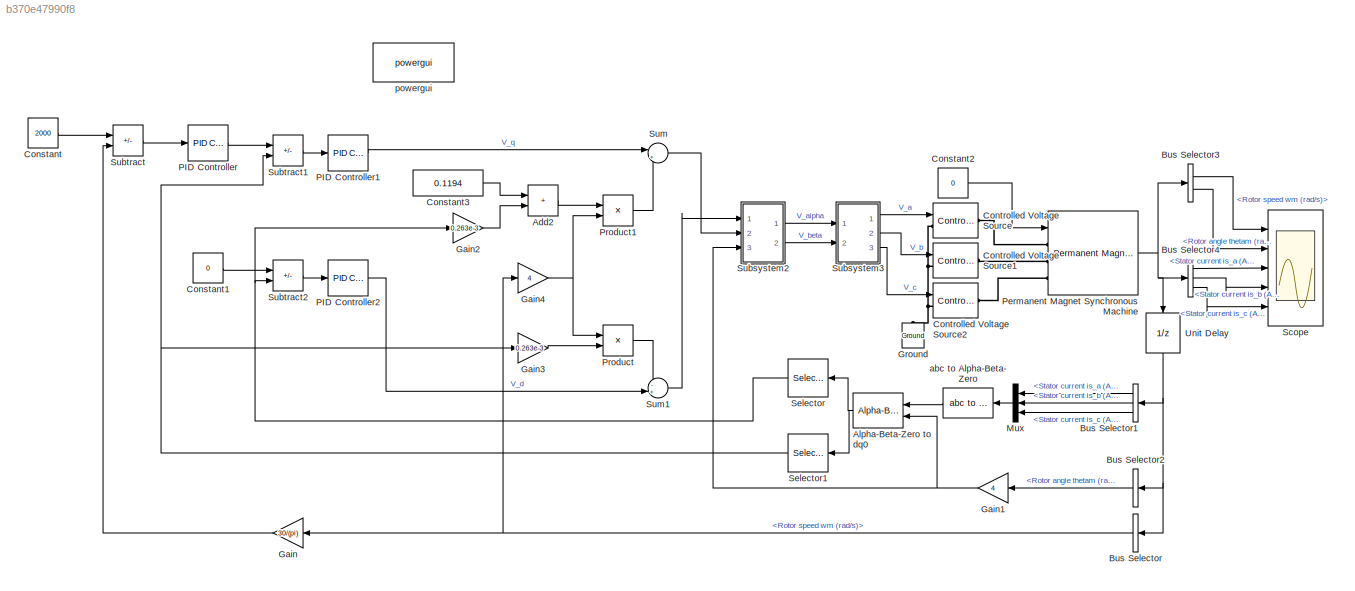
MODEL slx_b370e47990f8
KIND model
CONFIG AbsTol = auto
CONFIG EnableMultiTasking = off
CONFIG FixedStep = auto
CONFIG MaxStep = auto
CONFIG MinStep = auto
CONFIG RelTol = 1e-3
CONFIG SampleTimeConstraint = Unconstrained
CONFIG Solver = VariableStepAuto
CONFIG SolverName = VariableStepAuto
CONFIG StartTime = 0.0
CONFIG StopTime = 3
BLOCK [Sum] Add2
  IconShape = rectangular
  Ports = [2, 1]
BLOCK [Reference] Alpha-Beta-Zero to dq0  REF=powerlib_meascontrol/Transformations/Alpha-Beta-Zero
to dq0
  Ports = [2, 1]
  SourceBlock = powerlib_meascontrol/Transformations/Alpha-Beta-Zero\nto dq0
  SourceProductBaseCode = PS
  SourceType = Alpha-Beta-Zero to dq0 Transformation
BLOCK [BusSelector] Bus Selector
  OutputSignals = Rotor speed wm (rad/s)
  Ports = [1, 1]
BLOCK [BusSelector] Bus Selector1
  OutputSignals = Stator current is_a (A),Stator current is_b (A),Stator current is_c (A)
  Ports = [1, 3]
BLOCK [BusSelector] Bus Selector2
  OutputSignals = Rotor angle thetam (rad)
  Ports = [1, 1]
BLOCK [BusSelector] Bus Selector3
  OutputSignals = Rotor speed wm (rad/s),Rotor angle thetam (rad)
  Ports = [1, 2]
BLOCK [BusSelector] Bus Selector4
  OutputSignals = Stator current is_a (A),Stator current is_b (A),Stator current is_c (A)
  Ports = [1, 3]
BLOCK [Constant] Constant
  Value = 2000
BLOCK [Constant] Constant1
  Value = 0
BLOCK [Constant] Constant2
  Value = 0
BLOCK [Constant] Constant3
  Value = 0.1194
BLOCK [Reference] Controlled Voltage Source  REF=powerlib/Electrical
Sources/Controlled Voltage Source
  Ports = [1, 0, 0, 0, 0, 1, 1]
  SourceBlock = powerlib/Electrical\nSources/Controlled Voltage Source
  SourceProductBaseCode = PS
  SourceType = Controlled Voltage Source
BLOCK [Reference] Controlled Voltage Source1  REF=powerlib/Electrical
Sources/Controlled Voltage Source
  Ports = [1, 0, 0, 0, 0, 1, 1]
  SourceBlock = powerlib/Electrical\nSources/Controlled Voltage Source
  SourceProductBaseCode = PS
  SourceType = Controlled Voltage Source
BLOCK [Reference] Controlled Voltage Source2  REF=powerlib/Electrical
Sources/Controlled Voltage Source
  Ports = [1, 0, 0, 0, 0, 1, 1]
  SourceBlock = powerlib/Electrical\nSources/Controlled Voltage Source
  SourceProductBaseCode = PS
  SourceType = Controlled Voltage Source
BLOCK [Gain] Gain
  Gain = 30/(pi)
BLOCK [Gain] Gain1
  Gain = 4
BLOCK [Gain] Gain2
  Gain = 0.263e-3
BLOCK [Gain] Gain3
  Gain = 0.263e-3
BLOCK [Gain] Gain4
  Gain = 4
BLOCK [Reference] Ground  REF=powerlib/Elements/Ground
  Ports = [0, 0, 0, 0, 0, 1]
  SourceBlock = powerlib/Elements/Ground
  SourceProductBaseCode = PS
  SourceType = Ground
BLOCK [Mux] Mux
  DisplayOption = bar
  Inputs = 3
  Ports = [3, 1]
BLOCK [Reference] PID Controller  REF=simulink/Continuous/PID Controller
  Ports = [1, 1]
  SourceBlock = simulink/Continuous/PID Controller
  SourceProductBaseCode = SL
  SourceType = PID 1dof
BLOCK [Reference] PID Controller1  REF=simulink/Continuous/PID Controller
  Ports = [1, 1]
  SourceBlock = simulink/Continuous/PID Controller
  SourceProductBaseCode = SL
  SourceType = PID 1dof
BLOCK [Reference] PID Controller2  REF=simulink/Continuous/PID Controller
  Ports = [1, 1]
  SourceBlock = simulink/Continuous/PID Controller
  SourceProductBaseCode = SL
  SourceType = PID 1dof
BLOCK [Reference] Permanent Magnet Synchronous Machine  REF=powerlib/Machines/Permanent Magnet
Synchronous Machine
  Ports = [1, 1, 0, 0, 0, 3]
  SourceBlock = powerlib/Machines/Permanent Magnet\nSynchronous Machine
  SourceProductBaseCode = PS
  SourceType = Permanent Magnet Synchronous Machine
BLOCK [Product] Product
  Ports = [2, 1]
BLOCK [Product] Product1
  Ports = [2, 1]
BLOCK [Scope] Scope
  Floating = off
  NumInputPorts = 5
  Ports = [5]
  ScopeSpecificationString = Simulink.scopes.TimeScopeBlockCfg('CurrentConfiguration', extmgr.ConfigurationSet(extmgr.Configuration('Core','General UI',true),extmgr.Configuration('Core','Source UI',true),extmgr.Configuration('Sources','WiredSimulink',true),extmgr.Configuration('Visuals','Time Domain',true,'SerializedDisplays',{struct('MinYLimReal','-40.48931','MaxYLimReal','364.40376','YLabelReal','','MinYLimMag','0.00000','M...<+5302ch>
BLOCK [Selector] Selector
  IndexOptions = Index vector (dialog)
  Indices = [1]
  InputPortWidth = 3
  OutputSizes = 1
  Ports = [1, 1]
BLOCK [Selector] Selector1
  IndexOptions = Index vector (dialog)
  Indices = [2]
  InputPortWidth = 3
  OutputSizes = 1
  Ports = [1, 1]
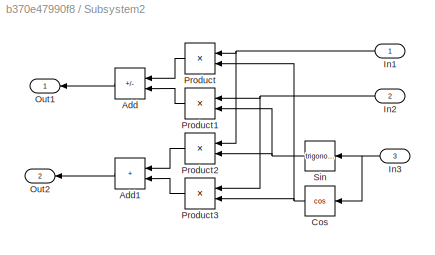
BLOCK [SubSystem] Subsystem2
  Ports = [3, 2]
  RequestExecContextInheritance = off
BLOCK [Sum] Subsystem2/Add
  IconShape = rectangular
  Inputs = +-
  Ports = [2, 1]
BLOCK [Sum] Subsystem2/Add1
  IconShape = rectangular
  Ports = [2, 1]
BLOCK [Trigonometry] Subsystem2/Cos
  Operator = cos
  Ports = [1, 1]
BLOCK [Inport] Subsystem2/In1
BLOCK [Inport] Subsystem2/In2
  Port = 2
BLOCK [Inport] Subsystem2/In3
  Port = 3
BLOCK [Outport] Subsystem2/Out1
BLOCK [Outport] Subsystem2/Out2
  Port = 2
BLOCK [Product] Subsystem2/Product
  Ports = [2, 1]
BLOCK [Product] Subsystem2/Product1
  Ports = [2, 1]
BLOCK [Product] Subsystem2/Product2
  Ports = [2, 1]
BLOCK [Product] Subsystem2/Product3
  Ports = [2, 1]
BLOCK [Trigonometry] Subsystem2/Sin
  Ports = [1, 1]
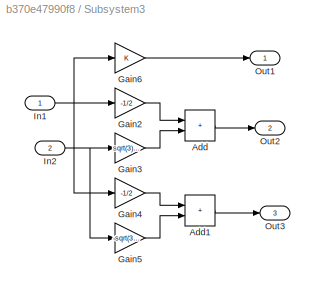
BLOCK [SubSystem] Subsystem3
  Ports = [2, 3]
  RequestExecContextInheritance = off
BLOCK [Sum] Subsystem3/Add
  IconShape = rectangular
  Ports = [2, 1]
BLOCK [Sum] Subsystem3/Add1
  IconShape = rectangular
  Ports = [2, 1]
BLOCK [Gain] Subsystem3/Gain2
  Gain = -1/2
BLOCK [Gain] Subsystem3/Gain3
  Gain = sqrt(3)/2
BLOCK [Gain] Subsystem3/Gain4
  Gain = -1/2
BLOCK [Gain] Subsystem3/Gain5
  Gain = -sqrt(3)/2
BLOCK [Gain] Subsystem3/Gain6
BLOCK [Inport] Subsystem3/In1
BLOCK [Inport] Subsystem3/In2
  Port = 2
BLOCK [Outport] Subsystem3/Out1
BLOCK [Outport] Subsystem3/Out2
  Port = 2
BLOCK [Outport] Subsystem3/Out3
  Port = 3
BLOCK [Sum] Subtract
  IconShape = rectangular
  Inputs = +-
  Ports = [2, 1]
BLOCK [Sum] Subtract1
  IconShape = rectangular
  Inputs = +-
  Ports = [2, 1]
BLOCK [Sum] Subtract2
  IconShape = rectangular
  Inputs = +-
  Ports = [2, 1]
BLOCK [Sum] Sum
  Inputs = |++
  Ports = [2, 1]
BLOCK [Sum] Sum1
  Inputs = -+|
  Ports = [2, 1]
BLOCK [UnitDelay] Unit Delay
  HasFrameUpgradeWarning = on
  SampleTime = 1e-6
BLOCK [Reference] abc to Alpha-Beta-Zero  REF=powerlib_meascontrol/Transformations/abc to
Alpha-Beta-Zero
  Ports = [1, 1]
  SourceBlock = powerlib_meascontrol/Transformations/abc to\nAlpha-Beta-Zero
  SourceProductBaseCode = PS
  SourceType = abc to Alpha-Beta-Zero Transformation
BLOCK [Reference] powergui  REF=powerlib/powergui
  Ports = []
  Priority = 1
  SourceBlock = powerlib/powergui
  SourceProductBaseCode = PS
  SourceType = PSB option menu block
LINE Add2:1 -> Product1:1
NET Alpha-Beta-Zero to dq0:1 -> Selector1:1, Selector:1
LINE Bus Selector1:1 -> Mux:1
LINE Bus Selector1:2 -> Mux:2
LINE Bus Selector1:3 -> Mux:3
LINE Bus Selector2:1 -> Gain1:1
LINE Bus Selector3:1 -> Scope:1
LINE Bus Selector3:2 -> Scope:2
LINE Bus Selector4:1 -> Scope:3
LINE Bus Selector4:2 -> Scope:4
LINE Bus Selector4:3 -> Scope:5
NET Bus Selector:1 -> Gain4:1, Gain:1
LINE Constant1:1 -> Subtract2:1
LINE Constant2:1 -> Permanent Magnet Synchronous Machine:1
LINE Constant3:1 -> Add2:1
LINE Constant:1 -> Subtract:1
NET Gain1:1 -> Alpha-Beta-Zero to dq0:2, Subsystem2:3
LINE Gain2:1 -> Add2:2
LINE Gain3:1 -> Product:2
NET Gain4:1 -> Product1:2, Product:1
LINE Gain:1 -> Subtract:2
LINE Mux:1 -> abc to Alpha-Beta-Zero:1
LINE PID Controller1:1 -> Sum:1
LINE PID Controller2:1 -> Sum1:2
LINE PID Controller:1 -> Subtract1:1
NET Permanent Magnet Synchronous Machine:1 -> Bus Selector3:1, Bus Selector4:1, Unit Delay:1
LINE Product1:1 -> Sum:2
LINE Product:1 -> Sum1:1
NET Selector1:1 -> Gain3:1, Subtract1:2
NET Selector:1 -> Gain2:1, Subtract2:2
LINE Subsystem2/Add1:1 -> Subsystem2/Out2:1
LINE Subsystem2/Add:1 -> Subsystem2/Out1:1
NET Subsystem2/Cos:1 -> Subsystem2/Product3:2, Subsystem2/Product:2
NET Subsystem2/In1:1 -> Subsystem2/Product2:1, Subsystem2/Product:1
NET Subsystem2/In2:1 -> Subsystem2/Product1:1, Subsystem2/Product3:1
NET Subsystem2/In3:1 -> Subsystem2/Cos:1, Subsystem2/Sin:1
LINE Subsystem2/Product1:1 -> Subsystem2/Add:2
LINE Subsystem2/Product2:1 -> Subsystem2/Add1:1
LINE Subsystem2/Product3:1 -> Subsystem2/Add1:2
LINE Subsystem2/Product:1 -> Subsystem2/Add:1
NET Subsystem2/Sin:1 -> Subsystem2/Product1:2, Subsystem2/Product2:2
LINE Subsystem2:1 -> Subsystem3:1
LINE Subsystem2:2 -> Subsystem3:2
LINE Subsystem3/Add1:1 -> Subsystem3/Out3:1
LINE Subsystem3/Add:1 -> Subsystem3/Out2:1
LINE Subsystem3/Gain2:1 -> Subsystem3/Add:1
LINE Subsystem3/Gain3:1 -> Subsystem3/Add:2
LINE Subsystem3/Gain4:1 -> Subsystem3/Add1:1
LINE Subsystem3/Gain5:1 -> Subsystem3/Add1:2
LINE Subsystem3/Gain6:1 -> Subsystem3/Out1:1
NET Subsystem3/In1:1 -> Subsystem3/Gain2:1, Subsystem3/Gain4:1, Subsystem3/Gain6:1
NET Subsystem3/In2:1 -> Subsystem3/Gain3:1, Subsystem3/Gain5:1
LINE Subsystem3:1 -> Controlled Voltage Source:1
LINE Subsystem3:2 -> Controlled Voltage Source1:1
LINE Subsystem3:3 -> Controlled Voltage Source2:1
LINE Subtract1:1 -> PID Controller1:1
LINE Subtract2:1 -> PID Controller2:1
LINE Subtract:1 -> PID Controller:1
LINE Sum1:1 -> Subsystem2:1
LINE Sum:1 -> Subsystem2:2
NET Unit Delay:1 -> Bus Selector1:1, Bus Selector2:1, Bus Selector:1
LINE abc to Alpha-Beta-Zero:1 -> Alpha-Beta-Zero to dq0:1
PNET net1: Controlled Voltage Source1:LConn1 -- Controlled Voltage Source2:LConn1 -- Controlled Voltage Source:LConn1 -- Ground:LConn1
PLINE Controlled Voltage Source1:RConn1 -- Permanent Magnet Synchronous Machine:LConn2
PLINE Controlled Voltage Source2:RConn1 -- Permanent Magnet Synchronous Machine:LConn3
PLINE Controlled Voltage Source:RConn1 -- Permanent Magnet Synchronous Machine:LConn1
note: NET lines group one-source signal fan-out (src -> all destinations, sorted); 1:1 wires keep LINE; PNET lines group multi-terminal physical nets as a canonical sorted terminal list (undirected conserving connections); 2-terminal nets keep the pairwise PLINE form
